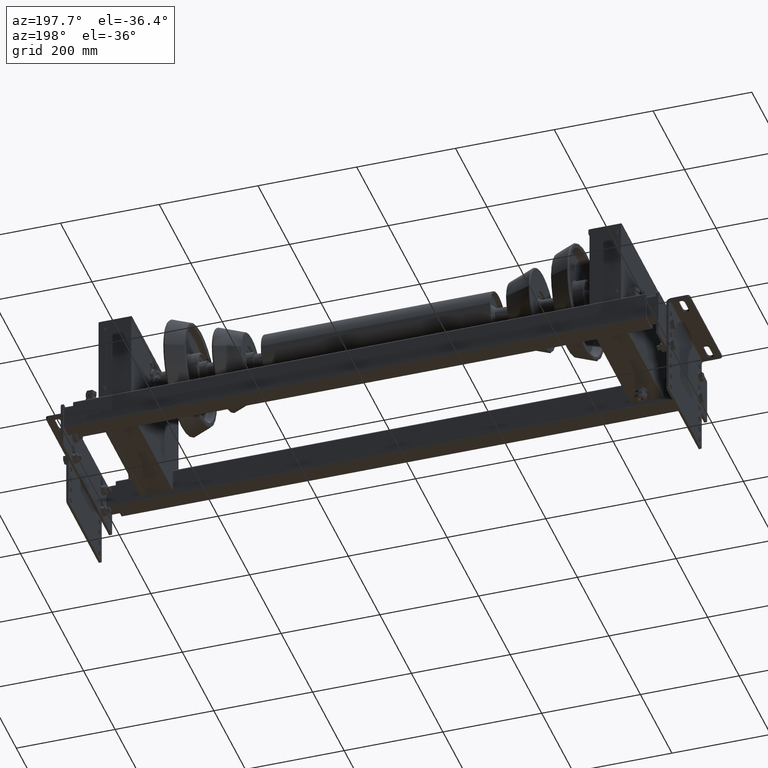
[diagram: clean part render]
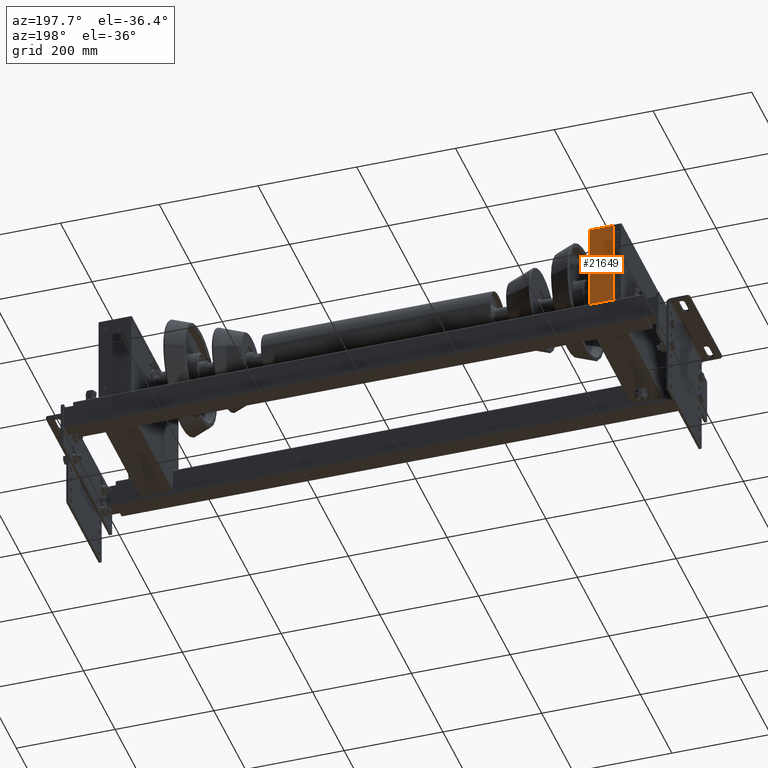
[diagram: same view with one face highlighted and labeled with its STEP entity id]
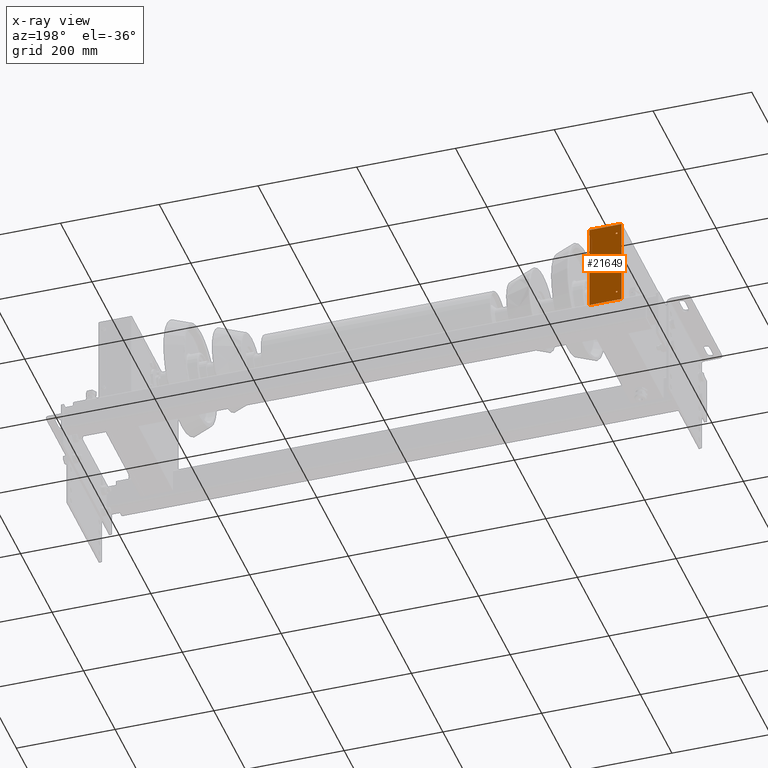
[diagram: x-ray of the same camera — body ghosted, the highlighted face saturated]
A machine part, auxiliary view. The second image highlights one B-rep face of the part: STEP entity #21649.
The next image is the same camera in x-ray: the body ghosted, the highlighted face saturated — about 0% of this face is hidden behind the body in this view.
In plain terms, the highlighted planar face has unit normal (-0, 1, -0).
Its self-contained STEP definition (entity closure, byte-faithful):
#20351=CARTESIAN_POINT('',(-150.000000000000910,65.000000000000227,55.250000000000000));
#20352=VERTEX_POINT('',#20351);
#20361=CARTESIAN_POINT('',(-150.000000000000910,65.000000000000227,51.750000000000000));
#20362=VERTEX_POINT('',#20361);
#20363=CARTESIAN_POINT('',(-150.000000000000910,65.000000000000227,53.500000000000000));
#20364=DIRECTION('',(1.0,0.0,0.0));
#20365=DIRECTION('',(0.0,0.0,1.0));
#20366=AXIS2_PLACEMENT_3D('',#20363,#20364,#20365);
#20367=CIRCLE('',#20366,1.750000000000000);
#20368=EDGE_CURVE('',#20362,#20352,#20367,.T.);
#20435=CARTESIAN_POINT('',(-150.000000000000910,-74.999999999999773,55.250000000000000));
#20436=VERTEX_POINT('',#20435);
#20445=CARTESIAN_POINT('',(-150.000000000000910,-74.999999999999773,51.750000000000000));
#20446=VERTEX_POINT('',#20445);
#20447=CARTESIAN_POINT('',(-150.000000000000910,-74.999999999999773,53.500000000000000));
#20448=DIRECTION('',(1.0,0.0,0.0));
#20449=DIRECTION('',(0.0,0.0,1.0));
#20450=AXIS2_PLACEMENT_3D('',#20447,#20448,#20449);
#20451=CIRCLE('',#20450,1.750000000000000);
#20452=EDGE_CURVE('',#20446,#20436,#20451,.T.);
#20750=CARTESIAN_POINT('',(-150.000000000000910,-74.999999999999773,53.500000000000000));
#20751=DIRECTION('',(1.0,0.0,0.0));
#20752=DIRECTION('',(0.0,0.0,1.0));
#20753=AXIS2_PLACEMENT_3D('',#20750,#20751,#20752);
#20754=CIRCLE('',#20753,1.750000000000000);
#20755=EDGE_CURVE('',#20436,#20446,#20754,.T.);
#20798=CARTESIAN_POINT('',(-150.000000000000910,65.000000000000227,53.500000000000000));
#20799=DIRECTION('',(1.0,0.0,0.0));
#20800=DIRECTION('',(0.0,0.0,1.0));
#20801=AXIS2_PLACEMENT_3D('',#20798,#20799,#20800);
#20802=CIRCLE('',#20801,1.750000000000000);
#20803=EDGE_CURVE('',#20352,#20362,#20802,.T.);
#20968=CARTESIAN_POINT('',(-150.000000000000910,-94.999999999999773,63.500000000000000));
#20969=VERTEX_POINT('',#20968);
#20970=CARTESIAN_POINT('',(-150.000000000000910,85.000000000000227,63.500000000000000));
#20971=VERTEX_POINT('',#20970);
#20972=CARTESIAN_POINT('',(-150.000000000000910,-94.999999999999773,63.500000000000000));
#20973=DIRECTION('',(0.0,1.0,0.0));
#20974=VECTOR('',#20973,180.0);
#20975=LINE('',#20972,#20974);
#20976=EDGE_CURVE('',#20969,#20971,#20975,.T.);
#21170=CARTESIAN_POINT('',(-150.000000000000910,85.000000000000227,-1.500000000000000));
#21171=VERTEX_POINT('',#21170);
#21178=CARTESIAN_POINT('',(-150.000000000000910,85.000000000000227,-1.500000000000000));
#21179=DIRECTION('',(0.0,0.0,1.0));
#21180=VECTOR('',#21179,65.0);
#21181=LINE('',#21178,#21180);
#21182=EDGE_CURVE('',#21171,#20971,#21181,.T.);
#21276=CARTESIAN_POINT('',(-150.000000000000910,-94.999999999999773,-1.500000000000000));
#21277=VERTEX_POINT('',#21276);
#21284=CARTESIAN_POINT('',(-150.000000000000910,-94.999999999999773,-1.500000000000000));
#21285=DIRECTION('',(0.0,1.0,0.0));
#21286=VECTOR('',#21285,180.0);
#21287=LINE('',#21284,#21286);
#21288=EDGE_CURVE('',#21277,#21171,#21287,.T.);
#21621=CARTESIAN_POINT('',(-150.000000000000910,-94.999999999999773,-1.500000000000000));
#21622=DIRECTION('',(0.0,0.0,1.0));
#21623=VECTOR('',#21622,65.0);
#21624=LINE('',#21621,#21623);
#21625=EDGE_CURVE('',#21277,#20969,#21624,.T.);
#21630=CARTESIAN_POINT('',(-150.000000000000910,-94.999999999999773,-1.500000000000000));
#21631=DIRECTION('',(-1.0,0.0,0.0));
#21632=DIRECTION('',(0.0,0.0,1.0));
#21633=AXIS2_PLACEMENT_3D('',#21630,#21631,#21632);
#21634=PLANE('',#21633);
#21635=ORIENTED_EDGE('',*,*,#21182,.F.);
#21636=ORIENTED_EDGE('',*,*,#21288,.F.);
#21637=ORIENTED_EDGE('',*,*,#21625,.T.);
#21638=ORIENTED_EDGE('',*,*,#20976,.T.);
#21639=EDGE_LOOP('',(#21635,#21636,#21637,#21638));
#21640=FACE_OUTER_BOUND('',#21639,.T.);
#21641=ORIENTED_EDGE('',*,*,#20755,.T.);
#21642=ORIENTED_EDGE('',*,*,#20452,.T.);
#21643=EDGE_LOOP('',(#21641,#21642));
#21644=FACE_BOUND('',#21643,.T.);
#21645=ORIENTED_EDGE('',*,*,#20803,.T.);
#21646=ORIENTED_EDGE('',*,*,#20368,.T.);
#21647=EDGE_LOOP('',(#21645,#21646));
#21648=FACE_BOUND('',#21647,.T.);
#21649=ADVANCED_FACE('',(#21640,#21644,#21648),#21634,.T.);